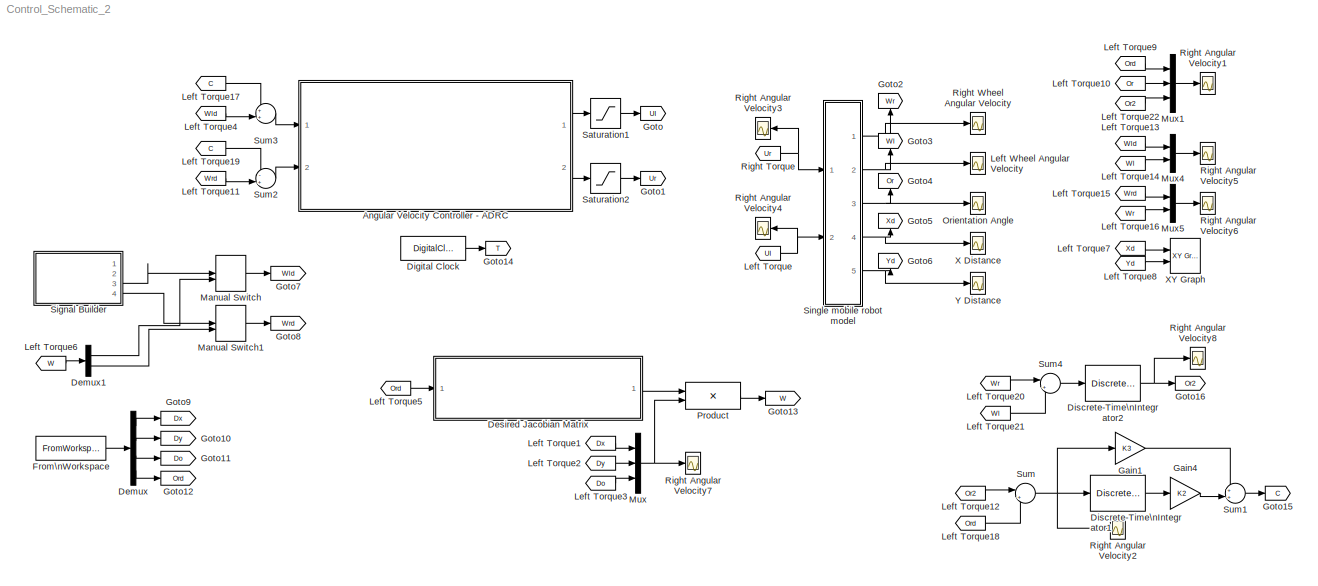
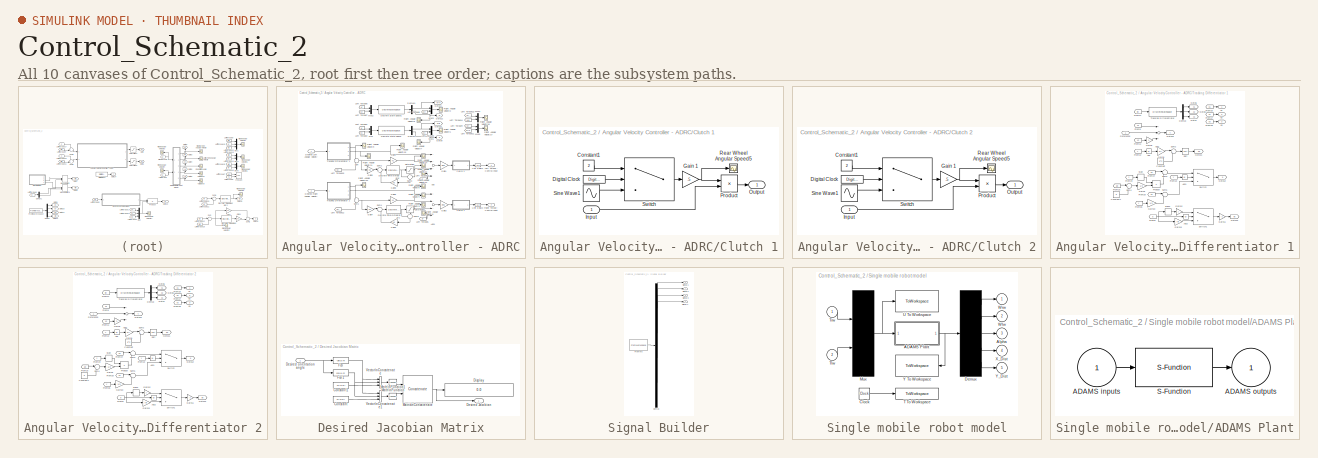
[diagram: thumbnail index - all 10 canvases of the model, root first then tree order]
MODEL Control_Schematic_2
KIND model
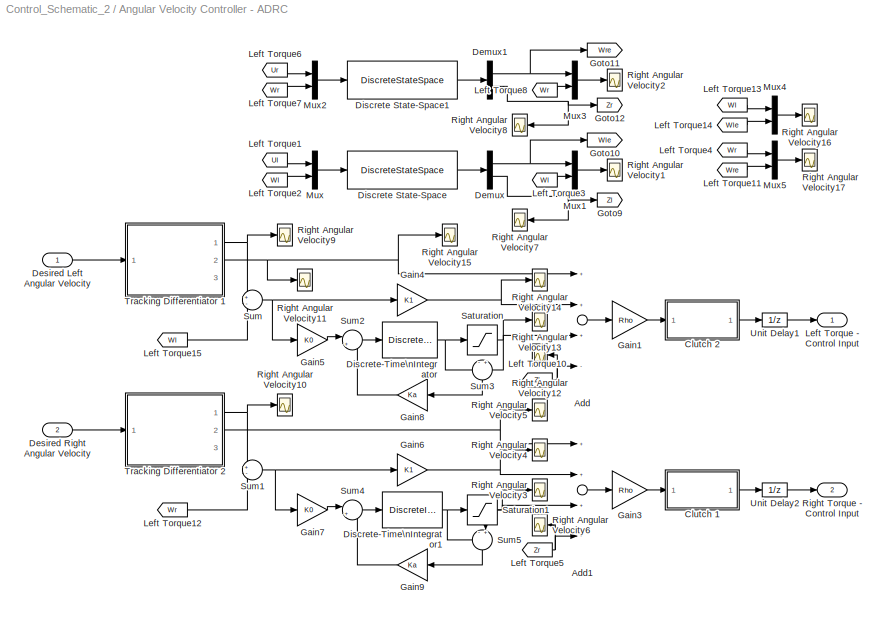
BLOCK [SubSystem] Angular Velocity Controller - ADRC
  Ports = [2, 2]
  RequestExecContextInheritance = off
  SID = 313
BLOCK [Sum] Angular Velocity Controller - ADRC/Add
  InputSameDT = off
  Inputs = +++-
  OutDataTypeStr = Inherit: Inherit via internal rule
  Ports = [4, 1]
  SID = 168
  SaturateOnIntegerOverflow = off
BLOCK [Sum] Angular Velocity Controller - ADRC/Add1
  InputSameDT = off
  Inputs = +++-
  OutDataTypeStr = Inherit: Inherit via internal rule
  Ports = [4, 1]
  SID = 176
  SaturateOnIntegerOverflow = off
BLOCK [SubSystem] Angular Velocity Controller - ADRC/Clutch 1
  Ports = [1, 1]
  RequestExecContextInheritance = off
  SID = 826
BLOCK [Constant] Angular Velocity Controller - ADRC/Clutch 1/Constant1
  SID = 828
  Value = 2
BLOCK [DigitalClock] Angular Velocity Controller - ADRC/Clutch 1/Digital Clock
  SID = 829
  SampleTime = Ts
BLOCK [Gain] Angular Velocity Controller - ADRC/Clutch 1/Gain 1
  Gain = .5
  OutDataTypeStr = Inherit: Inherit via internal rule
  ParamDataTypeStr = Inherit: Inherit via internal rule
  SID = 830
  SaturateOnIntegerOverflow = off
BLOCK [Inport] Angular Velocity Controller - ADRC/Clutch 1/Input
  IconDisplay = Port number
  SID = 827
BLOCK [Outport] Angular Velocity Controller - ADRC/Clutch 1/Output
  IconDisplay = Port number
  SID = 835
BLOCK [Product] Angular Velocity Controller - ADRC/Clutch 1/Product
  InputSameDT = off
  OutDataTypeStr = Inherit: Inherit via internal rule
  Ports = [2, 1]
  RndMeth = Floor
  SID = 831
  SaturateOnIntegerOverflow = off
BLOCK [Scope] Angular Velocity Controller - ADRC/Clutch 1/Rear Wheel Angular Speed5
  Floating = off
  LimitDataPoints = off
  NumInputPorts = 1
  Ports = [1]
  SID = 832
  SaveName = ScopeData5
  ShowLegends = off
  YMax = 2
  YMin = 0
  ZoomMode = xonly
BLOCK [Sin] Angular Velocity Controller - ADRC/Clutch 1/Sine Wave1
  Bias = 1
  Frequency = (pi/1)
  Phase = -pi/2
  Ports = [0, 1]
  SID = 833
  SampleTime = Ts
BLOCK [Switch] Angular Velocity Controller - ADRC/Clutch 1/Switch
  InputSameDT = off
  SID = 834
  SaturateOnIntegerOverflow = off
  Threshold = 1
BLOCK [SubSystem] Angular Velocity Controller - ADRC/Clutch 2
  Ports = [1, 1]
  RequestExecContextInheritance = off
  SID = 836
BLOCK [Constant] Angular Velocity Controller - ADRC/Clutch 2/Constant1
  SID = 838
  Value = 2
BLOCK [DigitalClock] Angular Velocity Controller - ADRC/Clutch 2/Digital Clock
  SID = 839
  SampleTime = Ts
BLOCK [Gain] Angular Velocity Controller - ADRC/Clutch 2/Gain 1
  Gain = .5
  OutDataTypeStr = Inherit: Inherit via internal rule
  ParamDataTypeStr = Inherit: Inherit via internal rule
  SID = 840
  SaturateOnIntegerOverflow = off
BLOCK [Inport] Angular Velocity Controller - ADRC/Clutch 2/Input
  IconDisplay = Port number
  SID = 837
BLOCK [Outport] Angular Velocity Controller - ADRC/Clutch 2/Output
  IconDisplay = Port number
  SID = 845
BLOCK [Product] Angular Velocity Controller - ADRC/Clutch 2/Product
  InputSameDT = off
  OutDataTypeStr = Inherit: Inherit via internal rule
  Ports = [2, 1]
  RndMeth = Floor
  SID = 841
  SaturateOnIntegerOverflow = off
BLOCK [Scope] Angular Velocity Controller - ADRC/Clutch 2/Rear Wheel Angular Speed5
  Floating = off
  LimitDataPoints = off
  NumInputPorts = 1
  Ports = [1]
  SID = 842
  SaveName = ScopeData5
  ShowLegends = off
  YMax = 2
  YMin = 0
  ZoomMode = xonly
BLOCK [Sin] Angular Velocity Controller - ADRC/Clutch 2/Sine Wave1
  Bias = 1
  Frequency = (pi/1)
  Phase = -pi/2
  Ports = [0, 1]
  SID = 843
  SampleTime = Ts
BLOCK [Switch] Angular Velocity Controller - ADRC/Clutch 2/Switch
  InputSameDT = off
  SID = 844
  SaturateOnIntegerOverflow = off
  Threshold = 1
BLOCK [Demux] Angular Velocity Controller - ADRC/Demux
  DisplayOption = bar
  Outputs = 2
  Ports = [1, 2]
  SID = 38
BLOCK [Demux] Angular Velocity Controller - ADRC/Demux1
  DisplayOption = bar
  Outputs = 2
  Ports = [1, 2]
  SID = 155
BLOCK [Inport] Angular Velocity Controller - ADRC/Desired Left Angular Velocity
  IconDisplay = Port number
  SID = 314
BLOCK [Inport] Angular Velocity Controller - ADRC/Desired Right Angular Velocity
  IconDisplay = Port number
  Port = 2
  SID = 315
BLOCK [DiscreteStateSpace] Angular Velocity Controller - ADRC/Discrete State-Space
  A = Obz.a
  B = Obz.b
  C = Obz.c
  D = Obz.d
  SID = 35
  SampleTime = Ts
BLOCK [DiscreteStateSpace] Angular Velocity Controller - ADRC/Discrete State-Space1
  A = Obz.a
  B = Obz.b
  C = Obz.c
  D = Obz.d
  SID = 156
  SampleTime = Ts
BLOCK [DiscreteIntegrator] Angular Velocity Controller - ADRC/Discrete-Time\nIntegrator
  ICPrevOutput = DiscIntNeverNeededParam
  ICPrevScaledInput = DiscIntNeverNeededParam
  IntegratorMethod = Integration: Trapezoidal
  Ports = [1, 1]
  SID = 174
  SampleTime = Ts
BLOCK [DiscreteIntegrator] Angular Velocity Controller - ADRC/Discrete-Time\nIntegrator1
  ICPrevOutput = DiscIntNeverNeededParam
  ICPrevScaledInput = DiscIntNeverNeededParam
  IntegratorMethod = Integration: Trapezoidal
  Ports = [1, 1]
  SID = 177
  SampleTime = Ts
BLOCK [Gain] Angular Velocity Controller - ADRC/Gain1
  Gain = Rho
  OutDataTypeStr = Inherit: Inherit via internal rule
  ParamDataTypeStr = Inherit: Inherit via internal rule
  SID = 46
  SaturateOnIntegerOverflow = off
BLOCK [Gain] Angular Velocity Controller - ADRC/Gain3
  Gain = Rho
  OutDataTypeStr = Inherit: Inherit via internal rule
  ParamDataTypeStr = Inherit: Inherit via internal rule
  SID = 634
  SaturateOnIntegerOverflow = off
BLOCK [Gain] Angular Velocity Controller - ADRC/Gain4
  Gain = K1
  OutDataTypeStr = Inherit: Inherit via internal rule
  ParamDataTypeStr = Inherit: Inherit via internal rule
  SID = 170
  SaturateOnIntegerOverflow = off
BLOCK [Gain] Angular Velocity Controller - ADRC/Gain5
  Gain = K0
  OutDataTypeStr = Inherit: Inherit via internal rule
  ParamDataTypeStr = Inherit: Inherit via internal rule
  SID = 173
  SaturateOnIntegerOverflow = off
BLOCK [Gain] Angular Velocity Controller - ADRC/Gain6
  Gain = K1
  OutDataTypeStr = Inherit: Inherit via internal rule
  ParamDataTypeStr = Inherit: Inherit via internal rule
  SID = 179
  SaturateOnIntegerOverflow = off
BLOCK [Gain] Angular Velocity Controller - ADRC/Gain7
  Gain = K0
  OutDataTypeStr = Inherit: Inherit via internal rule
  ParamDataTypeStr = Inherit: Inherit via internal rule
  SID = 180
  SaturateOnIntegerOverflow = off
BLOCK [Gain] Angular Velocity Controller - ADRC/Gain8
  Gain = Ka
  OutDataTypeStr = Inherit: Inherit via internal rule
  ParamDataTypeStr = Inherit: Inherit via internal rule
  SID = 324
  SaturateOnIntegerOverflow = off
BLOCK [Gain] Angular Velocity Controller - ADRC/Gain9
  Gain = Ka
  OutDataTypeStr = Inherit: Inherit via internal rule
  ParamDataTypeStr = Inherit: Inherit via internal rule
  SID = 328
  SaturateOnIntegerOverflow = off
BLOCK [Goto] Angular Velocity Controller - ADRC/Goto10
  GotoTag = Wle
  SID = 154
  TagVisibility = global
BLOCK [Goto] Angular Velocity Controller - ADRC/Goto11
  GotoTag = Wre
  SID = 158
  TagVisibility = global
BLOCK [Goto] Angular Velocity Controller - ADRC/Goto12
  GotoTag = Zr
  SID = 159
  TagVisibility = global
BLOCK [Goto] Angular Velocity Controller - ADRC/Goto9
  GotoTag = Zl
  SID = 153
  TagVisibility = global
BLOCK [Outport] Angular Velocity Controller - ADRC/Left Torque - Control Input
  IconDisplay = Port number
  SID = 317
BLOCK [From] Angular Velocity Controller - ADRC/Left Torque1
  GotoTag = Ul
  SID = 39
  TagVisibility = global
BLOCK [From] Angular Velocity Controller - ADRC/Left Torque10
  GotoTag = Zl
  SID = 175
  TagVisibility = global
BLOCK [From] Angular Velocity Controller - ADRC/Left Torque11
  GotoTag = Wre
  SID = 640
  TagVisibility = global
BLOCK [From] Angular Velocity Controller - ADRC/Left Torque12
  GotoTag = Wr
  SID = 184
  TagVisibility = global
BLOCK [From] Angular Velocity Controller - ADRC/Left Torque13
  GotoTag = Wl
  SID = 635
  TagVisibility = global
BLOCK [From] Angular Velocity Controller - ADRC/Left Torque14
  GotoTag = Wle
  SID = 636
  TagVisibility = global
BLOCK [From] Angular Velocity Controller - ADRC/Left Torque15
  GotoTag = Wl
  SID = 750
  TagVisibility = global
BLOCK [From] Angular Velocity Controller - ADRC/Left Torque2
  GotoTag = Wl
  SID = 40
  TagVisibility = global
BLOCK [From] Angular Velocity Controller - ADRC/Left Torque3
  GotoTag = Wl
  SID = 43
  TagVisibility = global
BLOCK [From] Angular Velocity Controller - ADRC/Left Torque4
  GotoTag = Wr
  SID = 639
  TagVisibility = global
BLOCK [From] Angular Velocity Controller - ADRC/Left Torque5
  GotoTag = Zr
  SID = 182
  TagVisibility = global
BLOCK [From] Angular Velocity Controller - ADRC/Left Torque6
  GotoTag = Ur
  SID = 160
  TagVisibility = global
BLOCK [From] Angular Velocity Controller - ADRC/Left Torque7
  GotoTag = Wr
  SID = 161
  TagVisibility = global
BLOCK [From] Angular Velocity Controller - ADRC/Left Torque8
  GotoTag = Wr
  SID = 162
  TagVisibility = global
BLOCK [Mux] Angular Velocity Controller - ADRC/Mux
  DisplayOption = bar
  Inputs = 2
  Ports = [2, 1]
  SID = 36
BLOCK [Mux] Angular Velocity Controller - ADRC/Mux1
  DisplayOption = bar
  Inputs = 2
  Ports = [2, 1]
  SID = 42
BLOCK [Mux] Angular Velocity Controller - ADRC/Mux2
  DisplayOption = bar
  Inputs = 2
  Ports = [2, 1]
  SID = 163
BLOCK [Mux] Angular Velocity Controller - ADRC/Mux3
  DisplayOption = bar
  Inputs = 2
  Ports = [2, 1]
  SID = 164
BLOCK [Mux] Angular Velocity Controller - ADRC/Mux4
  DisplayOption = bar
  Inputs = 2
  Ports = [2, 1]
  SID = 637
BLOCK [Mux] Angular Velocity Controller - ADRC/Mux5
  DisplayOption = bar
  Inputs = 2
  Ports = [2, 1]
  SID = 641
BLOCK [Scope] Angular Velocity Controller - ADRC/Right Angular Velocity1
  Floating = off
  LimitDataPoints = off
  NumInputPorts = 1
  Ports = [1]
  SID = 41
  SaveName = ScopeData5
  ShowLegends = off
  YMax = 0.2
  YMin = -0.2
  ZoomMode = xonly
BLOCK [Scope] Angular Velocity Controller - ADRC/Right Angular Velocity10
  Floating = off
  LimitDataPoints = off
  NumInputPorts = 1
  Ports = [1]
  SID = 291
  SaveName = ScopeData14
  ShowLegends = off
  YMax = 15
  YMin = -15
BLOCK [Scope] Angular Velocity Controller - ADRC/Right Angular Velocity11
  Floating = off
  LimitDataPoints = off
  NumInputPorts = 1
  Ports = [1]
  SID = 292
  SaveName = ScopeData15
  ShowLegends = off
  YMax = 50
  YMin = -50
BLOCK [Scope] Angular Velocity Controller - ADRC/Right Angular Velocity12
  Floating = off
  LimitDataPoints = off
  NumInputPorts = 1
  Ports = [1]
  SID = 333
  SaveName = ScopeData21
  ShowLegends = off
  YMax = 15
  YMin = -15
BLOCK [Scope] Angular Velocity Controller - ADRC/Right Angular Velocity13
  Floating = off
  LimitDataPoints = off
  NumInputPorts = 1
  Ports = [1]
  SID = 334
  SaveName = ScopeData22
  ShowLegends = off
  YMax = 1
  YMin = -1
BLOCK [Scope] Angular Velocity Controller - ADRC/Right Angular Velocity14
  Floating = off
  LimitDataPoints = off
  NumInputPorts = 1
  Ports = [1]
  SID = 335
  SaveName = ScopeData23
  ShowLegends = off
  YMax = 0.1
  YMin = -0.1
BLOCK [Scope] Angular Velocity Controller - ADRC/Right Angular Velocity15
  Floating = off
  LimitDataPoints = off
  NumInputPorts = 1
  Ports = [1]
  SID = 336
  SaveName = ScopeData24
  ShowLegends = off
  YMax = 0.0133333
  YMin = 0.0133333
BLOCK [Scope] Angular Velocity Controller - ADRC/Right Angular Velocity16
  Floating = off
  LimitDataPoints = off
  NumInputPorts = 1
  Ports = [1]
  SID = 638
  SaveName = ScopeData25
  ShowLegends = off
  YMax = 1
  YMin = -1
BLOCK [Scope] Angular Velocity Controller - ADRC/Right Angular Velocity17
  Floating = off
  LimitDataPoints = off
  NumInputPorts = 1
  Ports = [1]
  SID = 642
  SaveName = ScopeData26
  ShowLegends = off
  YMax = 1
  YMin = -1
BLOCK [Scope] Angular Velocity Controller - ADRC/Right Angular Velocity2
  Floating = off
  LimitDataPoints = off
  NumInputPorts = 1
  Ports = [1]
  SID = 165
  SaveName = ScopeData6
  ShowLegends = off
  YMax = 0.2
  YMin = -0.2
BLOCK [Scope] Angular Velocity Controller - ADRC/Right Angular Velocity3
  Floating = off
  LimitDataPoints = off
  NumInputPorts = 1
  Ports = [1]
  SID = 329
  SaveName = ScopeData16
  ShowLegends = off
  YMax = 1
  YMin = -1
BLOCK [Scope] Angular Velocity Controller - ADRC/Right Angular Velocity4
  Floating = off
  LimitDataPoints = off
  NumInputPorts = 1
  Ports = [1]
  SID = 330
  SaveName = ScopeData17
  ShowLegends = off
  YMax = 15
  YMin = -15
BLOCK [Scope] Angular Velocity Controller - ADRC/Right Angular Velocity5
  Floating = off
  LimitDataPoints = off
  NumInputPorts = 1
  Ports = [1]
  SID = 331
  SaveName = ScopeData18
  ShowLegends = off
  YMax = 15
  YMin = -15
BLOCK [Scope] Angular Velocity Controller - ADRC/Right Angular Velocity6
  Floating = off
  LimitDataPoints = off
  NumInputPorts = 1
  Ports = [1]
  SID = 332
  SaveName = ScopeData19
  ShowLegends = off
  YMax = 15
  YMin = -15
BLOCK [Scope] Angular Velocity Controller - ADRC/Right Angular Velocity7
  Floating = off
  LimitDataPoints = off
  NumInputPorts = 1
  Ports = [1]
  SID = 288
  SaveName = ScopeData11
  ShowLegends = off
  YMax = 1
  YMin = -1
BLOCK [Scope] Angular Velocity Controller - ADRC/Right Angular Velocity8
  Floating = off
  LimitDataPoints = off
  NumInputPorts = 1
  Ports = [1]
  SID = 289
  SaveName = ScopeData12
  ShowLegends = off
  TimeRange = 10
  YMax = 0.1
  YMin = -0.1
BLOCK [Scope] Angular Velocity Controller - ADRC/Right Angular Velocity9
  Floating = off
  LimitDataPoints = off
  NumInputPorts = 1
  Ports = [1]
  SID = 290
  SaveName = ScopeData13
  ShowLegends = off
  YMax = 15
  YMin = -15
BLOCK [Outport] Angular Velocity Controller - ADRC/Right Torque - Control Input
  IconDisplay = Port number
  Port = 2
  SID = 319
BLOCK [Saturate] Angular Velocity Controller - ADRC/Saturation
  InputPortMap = u0
  LowerLimit = -5e-3
  Ports = [1, 1]
  SID = 322
  UpperLimit = 5e-3
BLOCK [Saturate] Angular Velocity Controller - ADRC/Saturation1
  InputPortMap = u0
  LowerLimit = -5e-3
  Ports = [1, 1]
  SID = 326
  UpperLimit = 5e-3
BLOCK [Sum] Angular Velocity Controller - ADRC/Sum
  IconShape = round
  InputSameDT = off
  Inputs = +-
  OutDataTypeStr = Inherit: Inherit via internal rule
  Ports = [2, 1]
  SID = 171
  SaturateOnIntegerOverflow = off
BLOCK [Sum] Angular Velocity Controller - ADRC/Sum1
  IconShape = round
  InputSameDT = off
  Inputs = +-
  OutDataTypeStr = Inherit: Inherit via internal rule
  Ports = [2, 1]
  SID = 185
  SaturateOnIntegerOverflow = off
BLOCK [Sum] Angular Velocity Controller - ADRC/Sum2
  IconShape = round
  InputSameDT = off
  Inputs = |++
  OutDataTypeStr = Inherit: Inherit via internal rule
  Ports = [2, 1]
  SID = 321
  SaturateOnIntegerOverflow = off
BLOCK [Sum] Angular Velocity Controller - ADRC/Sum3
  IconShape = round
  InputSameDT = off
  Inputs = -+
  OutDataTypeStr = Inherit: Inherit via internal rule
  Ports = [2, 1]
  SID = 323
  SaturateOnIntegerOverflow = off
BLOCK [Sum] Angular Velocity Controller - ADRC/Sum4
  IconShape = round
  InputSameDT = off
  Inputs = |++
  OutDataTypeStr = Inherit: Inherit via internal rule
  Ports = [2, 1]
  SID = 325
  SaturateOnIntegerOverflow = off
BLOCK [Sum] Angular Velocity Controller - ADRC/Sum5
  IconShape = round
  InputSameDT = off
  Inputs = -+
  OutDataTypeStr = Inherit: Inherit via internal rule
  Ports = [2, 1]
  SID = 327
  SaturateOnIntegerOverflow = off
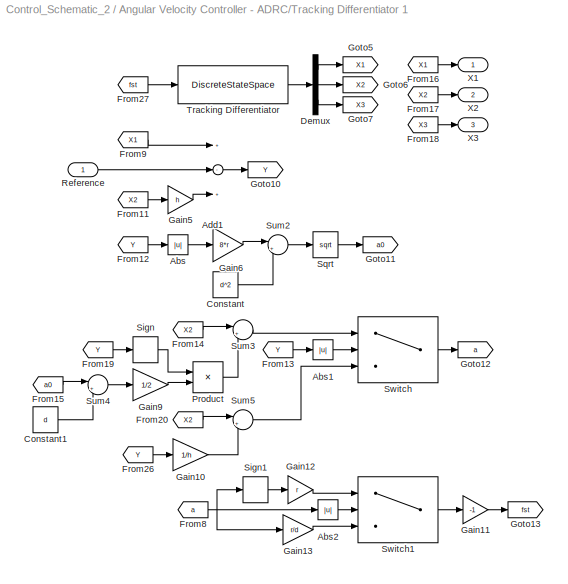
BLOCK [SubSystem] Angular Velocity Controller - ADRC/Tracking Differentiator 1
  Ports = [1, 3]
  RequestExecContextInheritance = off
  SID = 47
BLOCK [Abs] Angular Velocity Controller - ADRC/Tracking Differentiator 1/Abs
  SID = 49
  SaturateOnIntegerOverflow = off
BLOCK [Abs] Angular Velocity Controller - ADRC/Tracking Differentiator 1/Abs1
  SID = 50
  SaturateOnIntegerOverflow = off
BLOCK [Abs] Angular Velocity Controller - ADRC/Tracking Differentiator 1/Abs2
  SID = 51
  SaturateOnIntegerOverflow = off
BLOCK [Sum] Angular Velocity Controller - ADRC/Tracking Differentiator 1/Add1
  InputSameDT = off
  Inputs = +-+
  OutDataTypeStr = Inherit: Inherit via internal rule
  Ports = [3, 1]
  SID = 52
  SaturateOnIntegerOverflow = off
BLOCK [Constant] Angular Velocity Controller - ADRC/Tracking Differentiator 1/Constant
  SID = 53
  Value = d^2
BLOCK [Constant] Angular Velocity Controller - ADRC/Tracking Differentiator 1/Constant1
  SID = 54
  Value = d
BLOCK [Demux] Angular Velocity Controller - ADRC/Tracking Differentiator 1/Demux
  DisplayOption = bar
  Outputs = 3
  Ports = [1, 3]
  SID = 55
BLOCK [From] Angular Velocity Controller - ADRC/Tracking Differentiator 1/From11
  GotoTag = X2
  SID = 56
BLOCK [From] Angular Velocity Controller - ADRC/Tracking Differentiator 1/From12
  GotoTag = Y
  SID = 57
BLOCK [From] Angular Velocity Controller - ADRC/Tracking Differentiator 1/From13
  GotoTag = Y
  SID = 58
BLOCK [From] Angular Velocity Controller - ADRC/Tracking Differentiator 1/From14
  GotoTag = X2
  SID = 59
BLOCK [From] Angular Velocity Controller - ADRC/Tracking Differentiator 1/From15
  GotoTag = a0
  SID = 60
BLOCK [From] Angular Velocity Controller - ADRC/Tracking Differentiator 1/From16
  GotoTag = X1
  SID = 61
BLOCK [From] Angular Velocity Controller - ADRC/Tracking Differentiator 1/From17
  GotoTag = X2
  SID = 62
BLOCK [From] Angular Velocity Controller - ADRC/Tracking Differentiator 1/From18
  GotoTag = X3
  SID = 63
BLOCK [From] Angular Velocity Controller - ADRC/Tracking Differentiator 1/From19
  GotoTag = Y
  SID = 64
BLOCK [From] Angular Velocity Controller - ADRC/Tracking Differentiator 1/From20
  GotoTag = X2
  SID = 65
BLOCK [From] Angular Velocity Controller - ADRC/Tracking Differentiator 1/From26
  GotoTag = Y
  SID = 66
BLOCK [From] Angular Velocity Controller - ADRC/Tracking Differentiator 1/From27
  GotoTag = fst
  SID = 67
BLOCK [From] Angular Velocity Controller - ADRC/Tracking Differentiator 1/From8
  GotoTag = a
  SID = 68
BLOCK [From] Angular Velocity Controller - ADRC/Tracking Differentiator 1/From9
  GotoTag = X1
  SID = 69
BLOCK [Gain] Angular Velocity Controller - ADRC/Tracking Differentiator 1/Gain10
  Gain = 1/h
  OutDataTypeStr = Inherit: Inherit via internal rule
  ParamDataTypeStr = Inherit: Inherit via internal rule
  SID = 70
  SaturateOnIntegerOverflow = off
BLOCK [Gain] Angular Velocity Controller - ADRC/Tracking Differentiator 1/Gain11
  Gain = -1
  OutDataTypeStr = Inherit: Inherit via internal rule
  ParamDataTypeStr = Inherit: Inherit via internal rule
  SID = 71
  SaturateOnIntegerOverflow = off
BLOCK [Gain] Angular Velocity Controller - ADRC/Tracking Differentiator 1/Gain12
  Gain = r
  OutDataTypeStr = Inherit: Inherit via internal rule
  ParamDataTypeStr = Inherit: Inherit via internal rule
  SID = 72
  SaturateOnIntegerOverflow = off
BLOCK [Gain] Angular Velocity Controller - ADRC/Tracking Differentiator 1/Gain13
  Gain = r/d
  OutDataTypeStr = Inherit: Inherit via internal rule
  ParamDataTypeStr = Inherit: Inherit via internal rule
  SID = 73
  SaturateOnIntegerOverflow = off
BLOCK [Gain] Angular Velocity Controller - ADRC/Tracking Differentiator 1/Gain5
  Gain = h
  OutDataTypeStr = Inherit: Inherit via internal rule
  ParamDataTypeStr = Inherit: Inherit via internal rule
  SID = 74
  SaturateOnIntegerOverflow = off
BLOCK [Gain] Angular Velocity Controller - ADRC/Tracking Differentiator 1/Gain6
  Gain = 8*r
  OutDataTypeStr = Inherit: Inherit via internal rule
  ParamDataTypeStr = Inherit: Inherit via internal rule
  SID = 75
  SaturateOnIntegerOverflow = off
BLOCK [Gain] Angular Velocity Controller - ADRC/Tracking Differentiator 1/Gain9
  Gain = 1/2
  OutDataTypeStr = Inherit: Inherit via internal rule
  ParamDataTypeStr = Inherit: Inherit via internal rule
  SID = 76
  SaturateOnIntegerOverflow = off
BLOCK [Goto] Angular Velocity Controller - ADRC/Tracking Differentiator 1/Goto10
  GotoTag = Y
  SID = 77
BLOCK [Goto] Angular Velocity Controller - ADRC/Tracking Differentiator 1/Goto11
  GotoTag = a0
  SID = 78
BLOCK [Goto] Angular Velocity Controller - ADRC/Tracking Differentiator 1/Goto12
  GotoTag = a
  SID = 79
BLOCK [Goto] Angular Velocity Controller - ADRC/Tracking Differentiator 1/Goto13
  GotoTag = fst
  SID = 80
BLOCK [Goto] Angular Velocity Controller - ADRC/Tracking Differentiator 1/Goto5
  GotoTag = X1
  SID = 81
BLOCK [Goto] Angular Velocity Controller - ADRC/Tracking Differentiator 1/Goto6
  GotoTag = X2
  SID = 82
BLOCK [Goto] Angular Velocity Controller - ADRC/Tracking Differentiator 1/Goto7
  GotoTag = X3
  SID = 83
BLOCK [Product] Angular Velocity Controller - ADRC/Tracking Differentiator 1/Product
  InputSameDT = off
  OutDataTypeStr = Inherit: Inherit via internal rule
  Ports = [2, 1]
  RndMeth = Floor
  SID = 84
  SaturateOnIntegerOverflow = off
BLOCK [Inport] Angular Velocity Controller - ADRC/Tracking Differentiator 1/Reference
  IconDisplay = Port number
  SID = 48
BLOCK [Signum] Angular Velocity Controller - ADRC/Tracking Differentiator 1/Sign
  SID = 85
BLOCK [Signum] Angular Velocity Controller - ADRC/Tracking Differentiator 1/Sign1
  SID = 86
BLOCK [Sqrt] Angular Velocity Controller - ADRC/Tracking Differentiator 1/Sqrt
  SID = 87
BLOCK [Sum] Angular Velocity Controller - ADRC/Tracking Differentiator 1/Sum2
  IconShape = round
  InputSameDT = off
  Inputs = |++
  OutDataTypeStr = Inherit: Inherit via internal rule
  Ports = [2, 1]
  SID = 88
  SaturateOnIntegerOverflow = off
BLOCK [Sum] Angular Velocity Controller - ADRC/Tracking Differentiator 1/Sum3
  IconShape = round
  InputSameDT = off
  Inputs = |++
  OutDataTypeStr = Inherit: Inherit via internal rule
  Ports = [2, 1]
  SID = 89
  SaturateOnIntegerOverflow = off
BLOCK [Sum] Angular Velocity Controller - ADRC/Tracking Differentiator 1/Sum4
  IconShape = round
  InputSameDT = off
  Inputs = |+-
  OutDataTypeStr = Inherit: Inherit via internal rule
  Ports = [2, 1]
  SID = 90
  SaturateOnIntegerOverflow = off
BLOCK [Sum] Angular Velocity Controller - ADRC/Tracking Differentiator 1/Sum5
  IconShape = round
  InputSameDT = off
  Inputs = |++
  OutDataTypeStr = Inherit: Inherit via internal rule
  Ports = [2, 1]
  SID = 91
  SaturateOnIntegerOverflow = off
BLOCK [Switch] Angular Velocity Controller - ADRC/Tracking Differentiator 1/Switch
  Criteria = u2 > Threshold
  InputSameDT = off
  SID = 92
  SaturateOnIntegerOverflow = off
  Threshold = d0
BLOCK [Switch] Angular Velocity Controller - ADRC/Tracking Differentiator 1/Switch1
  Criteria = u2 > Threshold
  InputSameDT = off
  SID = 93
  SaturateOnIntegerOverflow = off
  Threshold = d
BLOCK [DiscreteStateSpace] Angular Velocity Controller - ADRC/Tracking Differentiator 1/Tracking Differentiator
  A = TD.a
  B = TD.b
  C = TD.c
  D = TD.d
  SID = 94
  SampleTime = Ts
BLOCK [Outport] Angular Velocity Controller - ADRC/Tracking Differentiator 1/X1
  IconDisplay = Port number
  SID = 95
BLOCK [Outport] Angular Velocity Controller - ADRC/Tracking Differentiator 1/X2
  IconDisplay = Port number
  Port = 2
  SID = 96
BLOCK [Outport] Angular Velocity Controller - ADRC/Tracking Differentiator 1/X3
  IconDisplay = Port number
  Port = 3
  SID = 97
BLOCK [SubSystem] Angular Velocity Controller - ADRC/Tracking Differentiator 2
  Ports = [1, 3]
  RequestExecContextInheritance = off
  SID = 186
BLOCK [Abs] Angular Velocity Controller - ADRC/Tracking Differentiator 2/Abs
  SID = 188
  SaturateOnIntegerOverflow = off
BLOCK [Abs] Angular Velocity Controller - ADRC/Tracking Differentiator 2/Abs1
  SID = 189
  SaturateOnIntegerOverflow = off
BLOCK [Abs] Angular Velocity Controller - ADRC/Tracking Differentiator 2/Abs2
  SID = 190
  SaturateOnIntegerOverflow = off
BLOCK [Sum] Angular Velocity Controller - ADRC/Tracking Differentiator 2/Add1
  InputSameDT = off
  Inputs = +-+
  OutDataTypeStr = Inherit: Inherit via internal rule
  Ports = [3, 1]
  SID = 191
  SaturateOnIntegerOverflow = off
BLOCK [Constant] Angular Velocity Controller - ADRC/Tracking Differentiator 2/Constant
  SID = 192
  Value = d^2
BLOCK [Constant] Angular Velocity Controller - ADRC/Tracking Differentiator 2/Constant1
  SID = 193
  Value = d
BLOCK [Demux] Angular Velocity Controller - ADRC/Tracking Differentiator 2/Demux
  DisplayOption = bar
  Outputs = 3
  Ports = [1, 3]
  SID = 194
BLOCK [From] Angular Velocity Controller - ADRC/Tracking Differentiator 2/From11
  GotoTag = X2
  SID = 195
BLOCK [From] Angular Velocity Controller - ADRC/Tracking Differentiator 2/From12
  GotoTag = Y
  SID = 196
BLOCK [From] Angular Velocity Controller - ADRC/Tracking Differentiator 2/From13
  GotoTag = Y
  SID = 197
BLOCK [From] Angular Velocity Controller - ADRC/Tracking Differentiator 2/From14
  GotoTag = X2
  SID = 198
BLOCK [From] Angular Velocity Controller - ADRC/Tracking Differentiator 2/From15
  GotoTag = a0
  SID = 199
BLOCK [From] Angular Velocity Controller - ADRC/Tracking Differentiator 2/From16
  GotoTag = X1
  SID = 200
BLOCK [From] Angular Velocity Controller - ADRC/Tracking Differentiator 2/From17
  GotoTag = X2
  SID = 201
BLOCK [From] Angular Velocity Controller - ADRC/Tracking Differentiator 2/From18
  GotoTag = X3
  SID = 202
BLOCK [From] Angular Velocity Controller - ADRC/Tracking Differentiator 2/From19
  GotoTag = Y
  SID = 203
BLOCK [From] Angular Velocity Controller - ADRC/Tracking Differentiator 2/From20
  GotoTag = X2
  SID = 204
BLOCK [From] Angular Velocity Controller - ADRC/Tracking Differentiator 2/From26
  GotoTag = Y
  SID = 205
BLOCK [From] Angular Velocity Controller - ADRC/Tracking Differentiator 2/From27
  GotoTag = fst
  SID = 206
BLOCK [From] Angular Velocity Controller - ADRC/Tracking Differentiator 2/From8
  GotoTag = a
  SID = 207
BLOCK [From] Angular Velocity Controller - ADRC/Tracking Differentiator 2/From9
  GotoTag = X1
  SID = 208
BLOCK [Gain] Angular Velocity Controller - ADRC/Tracking Differentiator 2/Gain10
  Gain = 1/h
  OutDataTypeStr = Inherit: Inherit via internal rule
  ParamDataTypeStr = Inherit: Inherit via internal rule
  SID = 209
  SaturateOnIntegerOverflow = off
BLOCK [Gain] Angular Velocity Controller - ADRC/Tracking Differentiator 2/Gain11
  Gain = -1
  OutDataTypeStr = Inherit: Inherit via internal rule
  ParamDataTypeStr = Inherit: Inherit via internal rule
  SID = 210
  SaturateOnIntegerOverflow = off
BLOCK [Gain] Angular Velocity Controller - ADRC/Tracking Differentiator 2/Gain12
  Gain = r
  OutDataTypeStr = Inherit: Inherit via internal rule
  ParamDataTypeStr = Inherit: Inherit via internal rule
  SID = 211
  SaturateOnIntegerOverflow = off
BLOCK [Gain] Angular Velocity Controller - ADRC/Tracking Differentiator 2/Gain13
  Gain = r/d
  OutDataTypeStr = Inherit: Inherit via internal rule
  ParamDataTypeStr = Inherit: Inherit via internal rule
  SID = 212
  SaturateOnIntegerOverflow = off
BLOCK [Gain] Angular Velocity Controller - ADRC/Tracking Differentiator 2/Gain5
  Gain = h
  OutDataTypeStr = Inherit: Inherit via internal rule
  ParamDataTypeStr = Inherit: Inherit via internal rule
  SID = 213
  SaturateOnIntegerOverflow = off
BLOCK [Gain] Angular Velocity Controller - ADRC/Tracking Differentiator 2/Gain6
  Gain = 8*r
  OutDataTypeStr = Inherit: Inherit via internal rule
  ParamDataTypeStr = Inherit: Inherit via internal rule
  SID = 214
  SaturateOnIntegerOverflow = off
BLOCK [Gain] Angular Velocity Controller - ADRC/Tracking Differentiator 2/Gain9
  Gain = 1/2
  OutDataTypeStr = Inherit: Inherit via internal rule
  ParamDataTypeStr = Inherit: Inherit via internal rule
  SID = 215
  SaturateOnIntegerOverflow = off
BLOCK [Goto] Angular Velocity Controller - ADRC/Tracking Differentiator 2/Goto10
  GotoTag = Y
  SID = 216
BLOCK [Goto] Angular Velocity Controller - ADRC/Tracking Differentiator 2/Goto11
  GotoTag = a0
  SID = 217
BLOCK [Goto] Angular Velocity Controller - ADRC/Tracking Differentiator 2/Goto12
  GotoTag = a
  SID = 218
BLOCK [Goto] Angular Velocity Controller - ADRC/Tracking Differentiator 2/Goto13
  GotoTag = fst
  SID = 219
BLOCK [Goto] Angular Velocity Controller - ADRC/Tracking Differentiator 2/Goto5
  GotoTag = X1
  SID = 220
BLOCK [Goto] Angular Velocity Controller - ADRC/Tracking Differentiator 2/Goto6
  GotoTag = X2
  SID = 221
BLOCK [Goto] Angular Velocity Controller - ADRC/Tracking Differentiator 2/Goto7
  GotoTag = X3
  SID = 222
BLOCK [Product] Angular Velocity Controller - ADRC/Tracking Differentiator 2/Product
  InputSameDT = off
  OutDataTypeStr = Inherit: Inherit via internal rule
  Ports = [2, 1]
  RndMeth = Floor
  SID = 223
  SaturateOnIntegerOverflow = off
BLOCK [Inport] Angular Velocity Controller - ADRC/Tracking Differentiator 2/Reference
  IconDisplay = Port number
  SID = 187
BLOCK [Signum] Angular Velocity Controller - ADRC/Tracking Differentiator 2/Sign
  SID = 224
BLOCK [Signum] Angular Velocity Controller - ADRC/Tracking Differentiator 2/Sign1
  SID = 225
BLOCK [Sqrt] Angular Velocity Controller - ADRC/Tracking Differentiator 2/Sqrt
  SID = 226
BLOCK [Sum] Angular Velocity Controller - ADRC/Tracking Differentiator 2/Sum2
  IconShape = round
  InputSameDT = off
  Inputs = |++
  OutDataTypeStr = Inherit: Inherit via internal rule
  Ports = [2, 1]
  SID = 227
  SaturateOnIntegerOverflow = off
BLOCK [Sum] Angular Velocity Controller - ADRC/Tracking Differentiator 2/Sum3
  IconShape = round
  InputSameDT = off
  Inputs = |++
  OutDataTypeStr = Inherit: Inherit via internal rule
  Ports = [2, 1]
  SID = 228
  SaturateOnIntegerOverflow = off
BLOCK [Sum] Angular Velocity Controller - ADRC/Tracking Differentiator 2/Sum4
  IconShape = round
  InputSameDT = off
  Inputs = |+-
  OutDataTypeStr = Inherit: Inherit via internal rule
  Ports = [2, 1]
  SID = 229
  SaturateOnIntegerOverflow = off
BLOCK [Sum] Angular Velocity Controller - ADRC/Tracking Differentiator 2/Sum5
  IconShape = round
  InputSameDT = off
  Inputs = |++
  OutDataTypeStr = Inherit: Inherit via internal rule
  Ports = [2, 1]
  SID = 230
  SaturateOnIntegerOverflow = off
BLOCK [Switch] Angular Velocity Controller - ADRC/Tracking Differentiator 2/Switch
  Criteria = u2 > Threshold
  InputSameDT = off
  SID = 231
  SaturateOnIntegerOverflow = off
  Threshold = d0
BLOCK [Switch] Angular Velocity Controller - ADRC/Tracking Differentiator 2/Switch1
  Criteria = u2 > Threshold
  InputSameDT = off
  SID = 232
  SaturateOnIntegerOverflow = off
  Threshold = d
BLOCK [DiscreteStateSpace] Angular Velocity Controller - ADRC/Tracking Differentiator 2/Tracking Differentiator
  A = TD.a
  B = TD.b
  C = TD.c
  D = TD.d
  SID = 233
  SampleTime = Ts
BLOCK [Outport] Angular Velocity Controller - ADRC/Tracking Differentiator 2/X1
  IconDisplay = Port number
  SID = 234
BLOCK [Outport] Angular Velocity Controller - ADRC/Tracking Differentiator 2/X2
  IconDisplay = Port number
  Port = 2
  SID = 235
BLOCK [Outport] Angular Velocity Controller - ADRC/Tracking Differentiator 2/X3
  IconDisplay = Port number
  Port = 3
  SID = 236
BLOCK [UnitDelay] Angular Velocity Controller - ADRC/Unit Delay1
  InputProcessing = Elements as channels (sample based)
  SID = 747
  SampleTime = -1
BLOCK [UnitDelay] Angular Velocity Controller - ADRC/Unit Delay2
  InputProcessing = Elements as channels (sample based)
  SID = 748
  SampleTime = -1
BLOCK [Demux] Demux
  DisplayOption = bar
  Ports = [1, 4]
  SID = 358
BLOCK [Demux] Demux1
  DisplayOption = bar
  Outputs = 2
  Ports = [1, 2]
  SID = 387
BLOCK [SubSystem] Desired Jacobian Matrix
  Ports = [1, 1]
  RequestExecContextInheritance = off
  SID = 380
BLOCK [Constant] Desired Jacobian Matrix/Constant
  SID = 371
  Value = b/(2*R)
BLOCK [Constant] Desired Jacobian Matrix/Constant1
  SID = 372
  Value = -b/(2*R)
BLOCK [Outport] Desired Jacobian Matrix/Desired Jacobian
  IconDisplay = Port number
  SID = 382
BLOCK [Inport] Desired Jacobian Matrix/Desired orientation angle
  IconDisplay = Port number
  SID = 381
BLOCK [Display] Desired Jacobian Matrix/Display
  Decimation = 1
  Ports = [1]
  SID = 376
BLOCK [Fcn] Desired Jacobian Matrix/Fcn
  Expr = -sin(u)/R
  SID = 369
BLOCK [Fcn] Desired Jacobian Matrix/Fcn1
  Expr = cos(u)/R
  SID = 370
BLOCK [Math] Desired Jacobian Matrix/Math\nFunction
  Operator = transpose
  Ports = [1, 1]
  SID = 377
BLOCK [Math] Desired Jacobian Matrix/Math\nFunction1
  Operator = transpose
  Ports = [1, 1]
  SID = 378
BLOCK [Concatenate] Desired Jacobian Matrix/Matrix\nConcatenate
  Mode = Multidimensional array
  Ports = [2, 1]
  SID = 373
BLOCK [Concatenate] Desired Jacobian Matrix/Vector\nConcatenate
  NumInputs = 3
  Ports = [3, 1]
  SID = 374
BLOCK [Concatenate] Desired Jacobian Matrix/Vector\nConcatenate1
  NumInputs = 3
  Ports = [3, 1]
  SID = 375
BLOCK [DigitalClock] Digital Clock
  SID = 755
  SampleTime = Ts
BLOCK [DiscreteIntegrator] Discrete-Time\nIntegrator1
  ICPrevOutput = DiscIntNeverNeededParam
  ICPrevScaledInput = DiscIntNeverNeededParam
  IntegratorMethod = Integration: Trapezoidal
  Ports = [1, 1]
  SID = 778
  SampleTime = Ts
  gainval = 1
BLOCK [DiscreteIntegrator] Discrete-Time\nIntegrator2
  ICPrevOutput = DiscIntNeverNeededParam
  ICPrevScaledInput = DiscIntNeverNeededParam
  IntegratorMethod = Integration: Trapezoidal
  Ports = [1, 1]
  SID = 794
  SampleTime = Ts
  gainval = R/b
BLOCK [FromWorkspace] From\nWorkspace
  SID = 357
  SampleTime = Ts
  VariableName = desired_path
  ZeroCross = on
BLOCK [Gain] Gain1
  Gain = K3
  OutDataTypeStr = Inherit: Inherit via internal rule
  ParamDataTypeStr = Inherit: Inherit via internal rule
  SID = 782
  SaturateOnIntegerOverflow = off
BLOCK [Gain] Gain4
  Gain = K2
  OutDataTypeStr = Inherit: Inherit via internal rule
  ParamDataTypeStr = Inherit: Inherit via internal rule
  SID = 781
  SaturateOnIntegerOverflow = off
BLOCK [Goto] Goto
  GotoTag = Ul
  SID = 28
  TagVisibility = global
BLOCK [Goto] Goto1
  GotoTag = Ur
  SID = 181
  TagVisibility = global
BLOCK [Goto] Goto10
  GotoTag = Dy
  SID = 360
  TagVisibility = global
BLOCK [Goto] Goto11
  GotoTag = Do
  SID = 361
  TagVisibility = global
BLOCK [Goto] Goto12
  GotoTag = Ord
  SID = 362
  TagVisibility = global
BLOCK [Goto] Goto13
  GotoTag = W
  SID = 385
  TagVisibility = global
BLOCK [Goto] Goto14
  GotoTag = T
  SID = 756
  TagVisibility = global
BLOCK [Goto] Goto15
  GotoTag = C
  SID = 784
  TagVisibility = global
BLOCK [Goto] Goto16
  GotoTag = Or2
  SID = 795
  TagVisibility = global
BLOCK [Goto] Goto2
  GotoTag = Wr
  SID = 30
  TagVisibility = global
BLOCK [Goto] Goto3
  GotoTag = Wl
  SID = 31
  TagVisibility = global
BLOCK [Goto] Goto4
  GotoTag = Or
  SID = 32
  TagVisibility = global
BLOCK [Goto] Goto5
  GotoTag = Xd
  SID = 33
  TagVisibility = global
BLOCK [Goto] Goto6
  GotoTag = Yd
  SID = 34
  TagVisibility = global
BLOCK [Goto] Goto7
  GotoTag = Wld
  SID = 98
  TagVisibility = global
BLOCK [Goto] Goto8
  GotoTag = Wrd
  SID = 100
  TagVisibility = global
BLOCK [Goto] Goto9
  GotoTag = Dx
  SID = 359
  TagVisibility = global
BLOCK [From] Left Torque
  GotoTag = Ul
  SID = 25
  TagVisibility = global
BLOCK [From] Left Torque1
  GotoTag = Dx
  SID = 363
  TagVisibility = global
BLOCK [From] Left Torque10
  GotoTag = Or
  SID = 762
  TagVisibility = global
BLOCK [From] Left Torque11
  GotoTag = Wrd
  SID = 183
  TagVisibility = global
BLOCK [From] Left Torque12
  GotoTag = Or2
  SID = 767
  TagVisibility = global
BLOCK [From] Left Torque13
  GotoTag = Wld
  SID = 272
  TagVisibility = global
BLOCK [From] Left Torque14
  GotoTag = Wl
  SID = 273
  TagVisibility = global
BLOCK [From] Left Torque15
  GotoTag = Wrd
  SID = 275
  TagVisibility = global
BLOCK [From] Left Torque16
  GotoTag = Wr
  SID = 276
  TagVisibility = global
BLOCK [From] Left Torque17
  GotoTag = C
  SID = 787
  TagVisibility = global
BLOCK [From] Left Torque18
  GotoTag = Ord
  SID = 774
  TagVisibility = global
BLOCK [From] Left Torque19
  GotoTag = C
  SID = 788
  TagVisibility = global
BLOCK [From] Left Torque2
  GotoTag = Dy
  SID = 364
  TagVisibility = global
BLOCK [From] Left Torque20
  GotoTag = Wr
  SID = 791
  TagVisibility = global
BLOCK [From] Left Torque21
  GotoTag = Wl
  SID = 792
  TagVisibility = global
BLOCK [From] Left Torque22
  GotoTag = Or2
  SID = 797
  TagVisibility = global
BLOCK [From] Left Torque3
  GotoTag = Do
  SID = 365
  TagVisibility = global
BLOCK [From] Left Torque4
  GotoTag = Wld
  SID = 99
  TagVisibility = global
BLOCK [From] Left Torque5
  GotoTag = Ord
  SID = 366
  TagVisibility = global
BLOCK [From] Left Torque6
  GotoTag = W
  SID = 386
  TagVisibility = global
BLOCK [From] Left Torque7
  GotoTag = Xd
  SID = 461
  TagVisibility = global
BLOCK [From] Left Torque8
  GotoTag = Yd
  SID = 462
  TagVisibility = global
BLOCK [From] Left Torque9
  GotoTag = Ord
  SID = 761
  TagVisibility = global
BLOCK [Scope] Left Wheel Angular Velocity
  Floating = off
  LimitDataPoints = off
  NumInputPorts = 1
  Ports = [1]
  SID = 2
  SaveName = ScopeData2
  ShowLegends = off
BLOCK [ManualSwitch] Manual Switch
  CurrentSetting = 0
  SID = 355
BLOCK [ManualSwitch] Manual Switch1
  CurrentSetting = 0
  SID = 356
BLOCK [Mux] Mux
  DisplayOption = bar
  Inputs = 3
  Ports = [3, 1]
  SID = 367
BLOCK [Mux] Mux1
  DisplayOption = bar
  Inputs = 3
  Ports = [3, 1]
  SID = 763
BLOCK [Mux] Mux4
  DisplayOption = bar
  Inputs = 2
  Ports = [2, 1]
  SID = 271
BLOCK [Mux] Mux5
  DisplayOption = bar
  Inputs = 2
  Ports = [2, 1]
  SID = 277
BLOCK [Scope] Orientation Angle
  Floating = off
  LimitDataPoints = off
  NumInputPorts = 1
  Ports = [1]
  SID = 1
  SaveName = ScopeData1
  ShowLegends = off
  YMax = 2
  YMin = -10
BLOCK [Product] Product
  InputSameDT = off
  Multiplication = Matrix(*)
  OutDataTypeStr = Inherit: Inherit via internal rule
  Ports = [2, 1]
  RndMeth = Floor
  SID = 383
  SaturateOnIntegerOverflow = off
BLOCK [Scope] Right Angular Velocity1
  Floating = off
  LimitDataPoints = off
  NumInputPorts = 1
  Ports = [1]
  SID = 764
  SaveName = ScopeData27
  ShowLegends = off
  YMax = 2
  YMin = -2
BLOCK [Scope] Right Angular Velocity2
  Floating = off
  LimitDataPoints = off
  NumInputPorts = 1
  Ports = [1]
  SID = 789
  SaveName = ScopeData28
  ShowLegends = off
  YMax = 1
  YMin = -1
BLOCK [Scope] Right Angular Velocity3
  Floating = off
  LimitDataPoints = off
  NumInputPorts = 1
  Ports = [1]
  SID = 269
  SaveName = ScopeData7
  ShowLegends = off
  YMax = 50
  YMin = -15
  ZoomMode = xonly
BLOCK [Scope] Right Angular Velocity4
  Floating = off
  LimitDataPoints = off
  NumInputPorts = 1
  Ports = [1]
  SID = 270
  SaveName = ScopeData8
  ShowLegends = off
  YMax = 50
  YMin = -15
BLOCK [Scope] Right Angular Velocity5
  Floating = off
  LimitDataPoints = off
  NumInputPorts = 1
  Ports = [1]
  SID = 274
  SaveName = ScopeData9
  ShowLegends = off
  YMax = 1
  YMin = -1
BLOCK [Scope] Right Angular Velocity6
  Floating = off
  LimitDataPoints = off
  NumInputPorts = 1
  Ports = [1]
  SID = 278
  SaveName = ScopeData10
  ShowLegends = off
  YMax = 1.5
  YMin = -1
BLOCK [Scope] Right Angular Velocity7
  Floating = off
  LimitDataPoints = off
  NumInputPorts = 1
  Ports = [1]
  SID = 790
  SaveName = ScopeData29
  ShowLegends = off
  YMax = 1
  YMin = -1
  ZoomMode = xonly
BLOCK [Scope] Right Angular Velocity8
  Floating = off
  LimitDataPoints = off
  NumInputPorts = 1
  Ports = [1]
  SID = 796
  SaveName = ScopeData30
  ShowLegends = off
  YMax = 1
  YMin = -1
  ZoomMode = xonly
BLOCK [From] Right Torque
  GotoTag = Ur
  SID = 24
  TagVisibility = global
BLOCK [Scope] Right Wheel Angular Velocity
  Floating = off
  LimitDataPoints = off
  NumInputPorts = 1
  Ports = [1]
  SID = 3
  SaveName = ScopeData3
  ShowLegends = off
  YMax = 0.4
  YMin = -0.4
  ZoomMode = xonly
BLOCK [Saturate] Saturation1
  InputPortMap = u0
  LowerLimit = -200
  Ports = [1, 1]
  SID = 757
  UpperLimit = 200
BLOCK [Saturate] Saturation2
  InputPortMap = u0
  LowerLimit = -200
  Ports = [1, 1]
  SID = 758
  UpperLimit = 200
BLOCK [SubSystem] Signal Builder
  ClipboardFcn = sigbuilder_block('clipboard');
  CloseFcn = sigbuilder_block('close');
  ContinueFcn = sigbuilder_block('continue');
  CopyFcn = sigbuilder_block('copy');
  DeleteFcn = sigbuilder_block('delete');
  LoadFcn = sigbuilder_block('load');
  MaskHideContents = on
  ModelCloseFcn = sigbuilder_block('modelClose');
  NameChangeFcn = sigbuilder_block('namechange');
  OpenFcn = sigbuilder_block('open',[437.25 118.5 550.5 394.5 ]);
  PauseFcn = sigbuilder_block('pause');
  Ports = [0, 4]
  PreSaveFcn = sigbuilder_block('preSave');
  RequestExecContextInheritance = off
  SID = 320
  StartFcn = sigbuilder_block('start');
  StopFcn = sigbuilder_block('stop');
  Tag = STV Subsys
BLOCK [Demux] Signal Builder/Demux
  Ports = [1, 4]
  SID = 320:1
  Tag = STV Demux
BLOCK [FromWorkspace] Signal Builder/FromWs
  SID = 320:2
  SampleTime = 0
  SigBuilderData = DataTag0
  Tag = STV FromWs
  VariableName = tuvar
  VnvData = DataTag1
  ZeroCross = on
BLOCK [Outport] Signal Builder/Signal 1
  IconDisplay = Port number
  SID = 320:4
  Tag = STV Outport
BLOCK [Outport] Signal Builder/Signal 2
  IconDisplay = Port number
  Port = 2
  SID = 320:5
  Tag = STV Outport
BLOCK [Outport] Signal Builder/Signal 3
  IconDisplay = Port number
  Port = 3
  SID = 320:6
  Tag = STV Outport
BLOCK [Outport] Signal Builder/Signal 4
  IconDisplay = Port number
  Port = 4
  SID = 320:7
  Tag = STV Outport
BLOCK [SubSystem] Single mobile robot model
  Ports = [2, 5]
  RequestExecContextInheritance = off
  SID = 798
  ShowPortLabels = none
BLOCK [SubSystem] Single mobile robot model/ADAMS Plant
  InitFcn = clear mex
  LoadFcn = %check based on dialog box setting for when setting by popup menu                                             \nif exist('ADAMS_solver_type')                                                                                 \n  if strcmp(ADAMS_solver_type,'C++')                                                                          \n    set_param(gcb,'exetyp','C++');                              ...<+3523ch>
  OpenFcn = open_system(gcb,'mask')                                                                                                                          \nif not(exist('set_some_params_states'))                                                                                                          \n                                                                                                          ...<+634ch>
  Ports = [1, 1]
  RequestExecContextInheritance = off
  SID = 801
BLOCK [Inport] Single mobile robot model/ADAMS Plant/ADAMS inputs
  IconDisplay = Port number
  SID = 802
BLOCK [Outport] Single mobile robot model/ADAMS Plant/ADAMS outputs
  IconDisplay = Port number
  InitialOutput = 0
  SID = 804
BLOCK [S-Function] Single mobile robot model/ADAMS Plant/S-Function
  EnableBusSupport = off
  FunctionName = adams_plant
  Parameters = exevie,exesol,stat,outfil,nampre,o_rate,nam_in,namout,dft,modsim,modani,dt_out,inicmd,exetyp,comtyp,ada_host, workdir,pin_interp_order,pout_extrap_order,pin_extrap_order,pout_interp_order,simulink_lead_cosim
  Ports = [1, 1]
  SID = 803
  StopFcn = clear mex
BLOCK [Outport] Single mobile robot model/Alpha
  IconDisplay = Port number
  Port = 3
  SID = 813
BLOCK [Clock] Single mobile robot model/Clock
  SID = 805
BLOCK [Demux] Single mobile robot model/Demux
  Outputs = 5
  Ports = [1, 5]
  SID = 806
BLOCK [Mux] Single mobile robot model/Mux
  Inputs = 2
  Ports = [2, 1]
  SID = 807
BLOCK [ToWorkspace] Single mobile robot model/T To Workspace
  MaxDataPoints = 100000
  Ports = [1]
  SID = 808
  VariableName = ADAMS_tout
BLOCK [Inport] Single mobile robot model/Tlw
  IconDisplay = Port number
  Port = 2
  SID = 800
BLOCK [Inport] Single mobile robot model/Trw
  IconDisplay = Port number
  SID = 799
BLOCK [ToWorkspace] Single mobile robot model/U To Workspace
  MaxDataPoints = 100000
  Ports = [1]
  SID = 809
  VariableName = ADAMS_uout
BLOCK [Outport] Single mobile robot model/Wlw
  IconDisplay = Port number
  Port = 2
  SID = 812
BLOCK [Outport] Single mobile robot model/Wrw
  IconDisplay = Port number
  SID = 811
BLOCK [Outport] Single mobile robot model/X_Dist
  IconDisplay = Port number
  Port = 4
  SID = 814
BLOCK [ToWorkspace] Single mobile robot model/Y To Workspace
  MaxDataPoints = 100000
  Ports = [1]
  SID = 810
  VariableName = ADAMS_yout
BLOCK [Outport] Single mobile robot model/Y_Dist
  IconDisplay = Port number
  Port = 5
  SID = 815
BLOCK [Sum] Sum
  IconShape = round
  InputSameDT = off
  Inputs = |+-
  OutDataTypeStr = Inherit: Inherit via internal rule
  Ports = [2, 1]
  SID = 773
  SaturateOnIntegerOverflow = off
BLOCK [Sum] Sum1
  IconShape = round
  InputSameDT = off
  Inputs = ++|
  OutDataTypeStr = Inherit: Inherit via internal rule
  Ports = [2, 1]
  SID = 783
  SaturateOnIntegerOverflow = off
BLOCK [Sum] Sum2
  IconShape = round
  InputSameDT = off
  Inputs = -+|
  OutDataTypeStr = Inherit: Inherit via internal rule
  Ports = [2, 1]
  SID = 785
  SaturateOnIntegerOverflow = off
BLOCK [Sum] Sum3
  IconShape = round
  InputSameDT = off
  Inputs = ++|
  OutDataTypeStr = Inherit: Inherit via internal rule
  Ports = [2, 1]
  SID = 786
  SaturateOnIntegerOverflow = off
BLOCK [Sum] Sum4
  IconShape = round
  InputSameDT = off
  Inputs = |+-
  OutDataTypeStr = Inherit: Inherit via internal rule
  Ports = [2, 1]
  SID = 793
  SaturateOnIntegerOverflow = off
BLOCK [Scope] X Distance
  Floating = off
  LimitDataPoints = off
  NumInputPorts = 1
  Ports = [1]
  SID = 4
  SaveName = ScopeData4
  ShowLegends = off
  YMax = 2600
  YMin = 0
BLOCK [Reference] XY Graph  REF=simulink/Sinks/XY Graph
  Ports = [2]
  SID = 460
  SourceBlock = simulink/Sinks/XY Graph
  SourceType = XY scope.
  st = Ts
  xmax = 5000
  xmin = 0
  ymax = 5000
  ymin = 0
BLOCK [Scope] Y Distance
  Floating = off
  LimitDataPoints = off
  NumInputPorts = 1
  Ports = [1]
  SID = 5
  ShowLegends = off
  YMax = 1000
  YMin = 0
LINE Angular Velocity Controller - ADRC/Add1:1 -> Angular Velocity Controller - ADRC/Gain3:1
LINE Angular Velocity Controller - ADRC/Add:1 -> Angular Velocity Controller - ADRC/Gain1:1
LINE Angular Velocity Controller - ADRC/Clutch 1/Constant1:1 -> Angular Velocity Controller - ADRC/Clutch 1/Switch:1
LINE Angular Velocity Controller - ADRC/Clutch 1/Digital Clock:1 -> Angular Velocity Controller - ADRC/Clutch 1/Switch:2
NET Angular Velocity Controller - ADRC/Clutch 1/Gain 1:1 -> Angular Velocity Controller - ADRC/Clutch 1/Product:1, Angular Velocity Controller - ADRC/Clutch 1/Rear Wheel Angular Speed5:1
LINE Angular Velocity Controller - ADRC/Clutch 1/Input:1 -> Angular Velocity Controller - ADRC/Clutch 1/Product:2
LINE Angular Velocity Controller - ADRC/Clutch 1/Product:1 -> Angular Velocity Controller - ADRC/Clutch 1/Output:1
LINE Angular Velocity Controller - ADRC/Clutch 1/Sine Wave1:1 -> Angular Velocity Controller - ADRC/Clutch 1/Switch:3
LINE Angular Velocity Controller - ADRC/Clutch 1/Switch:1 -> Angular Velocity Controller - ADRC/Clutch 1/Gain 1:1
LINE Angular Velocity Controller - ADRC/Clutch 1:1 -> Angular Velocity Controller - ADRC/Unit Delay2:1
LINE Angular Velocity Controller - ADRC/Clutch 2/Constant1:1 -> Angular Velocity Controller - ADRC/Clutch 2/Switch:1
LINE Angular Velocity Controller - ADRC/Clutch 2/Digital Clock:1 -> Angular Velocity Controller - ADRC/Clutch 2/Switch:2
NET Angular Velocity Controller - ADRC/Clutch 2/Gain 1:1 -> Angular Velocity Controller - ADRC/Clutch 2/Product:1, Angular Velocity Controller - ADRC/Clutch 2/Rear Wheel Angular Speed5:1
LINE Angular Velocity Controller - ADRC/Clutch 2/Input:1 -> Angular Velocity Controller - ADRC/Clutch 2/Product:2
LINE Angular Velocity Controller - ADRC/Clutch 2/Product:1 -> Angular Velocity Controller - ADRC/Clutch 2/Output:1
LINE Angular Velocity Controller - ADRC/Clutch 2/Sine Wave1:1 -> Angular Velocity Controller - ADRC/Clutch 2/Switch:3
LINE Angular Velocity Controller - ADRC/Clutch 2/Switch:1 -> Angular Velocity Controller - ADRC/Clutch 2/Gain 1:1
LINE Angular Velocity Controller - ADRC/Clutch 2:1 -> Angular Velocity Controller - ADRC/Unit Delay1:1
NET Angular Velocity Controller - ADRC/Demux1:1 -> Angular Velocity Controller - ADRC/Goto11:1, Angular Velocity Controller - ADRC/Mux3:1
NET Angular Velocity Controller - ADRC/Demux1:2 -> Angular Velocity Controller - ADRC/Goto12:1, Angular Velocity Controller - ADRC/Right Angular Velocity8:1
NET Angular Velocity Controller - ADRC/Demux:1 -> Angular Velocity Controller - ADRC/Goto10:1, Angular Velocity Controller - ADRC/Mux1:1
NET Angular Velocity Controller - ADRC/Demux:2 -> Angular Velocity Controller - ADRC/Goto9:1, Angular Velocity Controller - ADRC/Right Angular Velocity7:1
LINE Angular Velocity Controller - ADRC/Desired Left Angular Velocity:1 -> Angular Velocity Controller - ADRC/Tracking Differentiator 1:1
LINE Angular Velocity Controller - ADRC/Desired Right Angular Velocity:1 -> Angular Velocity Controller - ADRC/Tracking Differentiator 2:1
LINE Angular Velocity Controller - ADRC/Discrete State-Space1:1 -> Angular Velocity Controller - ADRC/Demux1:1
LINE Angular Velocity Controller - ADRC/Discrete State-Space:1 -> Angular Velocity Controller - ADRC/Demux:1
NET Angular Velocity Controller - ADRC/Discrete-Time\nIntegrator1:1 -> Angular Velocity Controller - ADRC/Saturation1:1, Angular Velocity Controller - ADRC/Sum5:1
NET Angular Velocity Controller - ADRC/Discrete-Time\nIntegrator:1 -> Angular Velocity Controller - ADRC/Saturation:1, Angular Velocity Controller - ADRC/Sum3:1
LINE Angular Velocity Controller - ADRC/Gain1:1 -> Angular Velocity Controller - ADRC/Clutch 2:1
LINE Angular Velocity Controller - ADRC/Gain3:1 -> Angular Velocity Controller - ADRC/Clutch 1:1
NET Angular Velocity Controller - ADRC/Gain4:1 -> Angular Velocity Controller - ADRC/Add:2, Angular Velocity Controller - ADRC/Right Angular Velocity14:1
LINE Angular Velocity Controller - ADRC/Gain5:1 -> Angular Velocity Controller - ADRC/Sum2:1
NET Angular Velocity Controller - ADRC/Gain6:1 -> Angular Velocity Controller - ADRC/Add1:2, Angular Velocity Controller - ADRC/Right Angular Velocity4:1
LINE Angular Velocity Controller - ADRC/Gain7:1 -> Angular Velocity Controller - ADRC/Sum4:1
LINE Angular Velocity Controller - ADRC/Gain8:1 -> Angular Velocity Controller - ADRC/Sum2:2
LINE Angular Velocity Controller - ADRC/Gain9:1 -> Angular Velocity Controller - ADRC/Sum4:2
NET Angular Velocity Controller - ADRC/Left Torque10:1 -> Angular Velocity Controller - ADRC/Add:4, Angular Velocity Controller - ADRC/Right Angular Velocity12:1
LINE Angular Velocity Controller - ADRC/Left Torque11:1 -> Angular Velocity Controller - ADRC/Mux5:2
LINE Angular Velocity Controller - ADRC/Left Torque12:1 -> Angular Velocity Controller - ADRC/Sum1:2
LINE Angular Velocity Controller - ADRC/Left Torque13:1 -> Angular Velocity Controller - ADRC/Mux4:1
LINE Angular Velocity Controller - ADRC/Left Torque14:1 -> Angular Velocity Controller - ADRC/Mux4:2
LINE Angular Velocity Controller - ADRC/Left Torque15:1 -> Angular Velocity Controller - ADRC/Sum:2
LINE Angular Velocity Controller - ADRC/Left Torque1:1 -> Angular Velocity Controller - ADRC/Mux:1
LINE Angular Velocity Controller - ADRC/Left Torque2:1 -> Angular Velocity Controller - ADRC/Mux:2
LINE Angular Velocity Controller - ADRC/Left Torque3:1 -> Angular Velocity Controller - ADRC/Mux1:2
LINE Angular Velocity Controller - ADRC/Left Torque4:1 -> Angular Velocity Controller - ADRC/Mux5:1
NET Angular Velocity Controller - ADRC/Left Torque5:1 -> Angular Velocity Controller - ADRC/Add1:4, Angular Velocity Controller - ADRC/Right Angular Velocity6:1
LINE Angular Velocity Controller - ADRC/Left Torque6:1 -> Angular Velocity Controller - ADRC/Mux2:1
LINE Angular Velocity Controller - ADRC/Left Torque7:1 -> Angular Velocity Controller - ADRC/Mux2:2
LINE Angular Velocity Controller - ADRC/Left Torque8:1 -> Angular Velocity Controller - ADRC/Mux3:2
LINE Angular Velocity Controller - ADRC/Mux1:1 -> Angular Velocity Controller - ADRC/Right Angular Velocity1:1
LINE Angular Velocity Controller - ADRC/Mux2:1 -> Angular Velocity Controller - ADRC/Discrete State-Space1:1
LINE Angular Velocity Controller - ADRC/Mux3:1 -> Angular Velocity Controller - ADRC/Right Angular Velocity2:1
LINE Angular Velocity Controller - ADRC/Mux4:1 -> Angular Velocity Controller - ADRC/Right Angular Velocity16:1
LINE Angular Velocity Controller - ADRC/Mux5:1 -> Angular Velocity Controller - ADRC/Right Angular Velocity17:1
LINE Angular Velocity Controller - ADRC/Mux:1 -> Angular Velocity Controller - ADRC/Discrete State-Space:1
NET Angular Velocity Controller - ADRC/Saturation1:1 -> Angular Velocity Controller - ADRC/Add1:3, Angular Velocity Controller - ADRC/Right Angular Velocity3:1, Angular Velocity Controller - ADRC/Sum5:2
NET Angular Velocity Controller - ADRC/Saturation:1 -> Angular Velocity Controller - ADRC/Add:3, Angular Velocity Controller - ADRC/Right Angular Velocity13:1, Angular Velocity Controller - ADRC/Sum3:2
NET Angular Velocity Controller - ADRC/Sum1:1 -> Angular Velocity Controller - ADRC/Gain6:1, Angular Velocity Controller - ADRC/Gain7:1
LINE Angular Velocity Controller - ADRC/Sum2:1 -> Angular Velocity Controller - ADRC/Discrete-Time\nIntegrator:1
LINE Angular Velocity Controller - ADRC/Sum3:1 -> Angular Velocity Controller - ADRC/Gain8:1
LINE Angular Velocity Controller - ADRC/Sum4:1 -> Angular Velocity Controller - ADRC/Discrete-Time\nIntegrator1:1
LINE Angular Velocity Controller - ADRC/Sum5:1 -> Angular Velocity Controller - ADRC/Gain9:1
NET Angular Velocity Controller - ADRC/Sum:1 -> Angular Velocity Controller - ADRC/Gain4:1, Angular Velocity Controller - ADRC/Gain5:1
LINE Angular Velocity Controller - ADRC/Tracking Differentiator 1/Abs1:1 -> Angular Velocity Controller - ADRC/Tracking Differentiator 1/Switch:2
LINE Angular Velocity Controller - ADRC/Tracking Differentiator 1/Abs2:1 -> Angular Velocity Controller - ADRC/Tracking Differentiator 1/Switch1:2
LINE Angular Velocity Controller - ADRC/Tracking Differentiator 1/Abs:1 -> Angular Velocity Controller - ADRC/Tracking Differentiator 1/Gain6:1
LINE Angular Velocity Controller - ADRC/Tracking Differentiator 1/Add1:1 -> Angular Velocity Controller - ADRC/Tracking Differentiator 1/Goto10:1
LINE Angular Velocity Controller - ADRC/Tracking Differentiator 1/Constant1:1 -> Angular Velocity Controller - ADRC/Tracking Differentiator 1/Sum4:2
LINE Angular Velocity Controller - ADRC/Tracking Differentiator 1/Constant:1 -> Angular Velocity Controller - ADRC/Tracking Differentiator 1/Sum2:2
LINE Angular Velocity Controller - ADRC/Tracking Differentiator 1/Demux:1 -> Angular Velocity Controller - ADRC/Tracking Differentiator 1/Goto5:1
LINE Angular Velocity Controller - ADRC/Tracking Differentiator 1/Demux:2 -> Angular Velocity Controller - ADRC/Tracking Differentiator 1/Goto6:1
LINE Angular Velocity Controller - ADRC/Tracking Differentiator 1/Demux:3 -> Angular Velocity Controller - ADRC/Tracking Differentiator 1/Goto7:1
LINE Angular Velocity Controller - ADRC/Tracking Differentiator 1/From11:1 -> Angular Velocity Controller - ADRC/Tracking Differentiator 1/Gain5:1
LINE Angular Velocity Controller - ADRC/Tracking Differentiator 1/From12:1 -> Angular Velocity Controller - ADRC/Tracking Differentiator 1/Abs:1
LINE Angular Velocity Controller - ADRC/Tracking Differentiator 1/From13:1 -> Angular Velocity Controller - ADRC/Tracking Differentiator 1/Abs1:1
LINE Angular Velocity Controller - ADRC/Tracking Differentiator 1/From14:1 -> Angular Velocity Controller - ADRC/Tracking Differentiator 1/Sum3:1
LINE Angular Velocity Controller - ADRC/Tracking Differentiator 1/From15:1 -> Angular Velocity Controller - ADRC/Tracking Differentiator 1/Sum4:1
LINE Angular Velocity Controller - ADRC/Tracking Differentiator 1/From16:1 -> Angular Velocity Controller - ADRC/Tracking Differentiator 1/X1:1
LINE Angular Velocity Controller - ADRC/Tracking Differentiator 1/From17:1 -> Angular Velocity Controller - ADRC/Tracking Differentiator 1/X2:1
LINE Angular Velocity Controller - ADRC/Tracking Differentiator 1/From18:1 -> Angular Velocity Controller - ADRC/Tracking Differentiator 1/X3:1
LINE Angular Velocity Controller - ADRC/Tracking Differentiator 1/From19:1 -> Angular Velocity Controller - ADRC/Tracking Differentiator 1/Sign:1
LINE Angular Velocity Controller - ADRC/Tracking Differentiator 1/From20:1 -> Angular Velocity Controller - ADRC/Tracking Differentiator 1/Sum5:1
LINE Angular Velocity Controller - ADRC/Tracking Differentiator 1/From26:1 -> Angular Velocity Controller - ADRC/Tracking Differentiator 1/Gain10:1
LINE Angular Velocity Controller - ADRC/Tracking Differentiator 1/From27:1 -> Angular Velocity Controller - ADRC/Tracking Differentiator 1/Tracking Differentiator:1
NET Angular Velocity Controller - ADRC/Tracking Differentiator 1/From8:1 -> Angular Velocity Controller - ADRC/Tracking Differentiator 1/Abs2:1, Angular Velocity Controller - ADRC/Tracking Differentiator 1/Gain13:1, Angular Velocity Controller - ADRC/Tracking Differentiator 1/Sign1:1
LINE Angular Velocity Controller - ADRC/Tracking Differentiator 1/From9:1 -> Angular Velocity Controller - ADRC/Tracking Differentiator 1/Add1:1
LINE Angular Velocity Controller - ADRC/Tracking Differentiator 1/Gain10:1 -> Angular Velocity Controller - ADRC/Tracking Differentiator 1/Sum5:2
LINE Angular Velocity Controller - ADRC/Tracking Differentiator 1/Gain11:1 -> Angular Velocity Controller - ADRC/Tracking Differentiator 1/Goto13:1
LINE Angular Velocity Controller - ADRC/Tracking Differentiator 1/Gain12:1 -> Angular Velocity Controller - ADRC/Tracking Differentiator 1/Switch1:1
LINE Angular Velocity Controller - ADRC/Tracking Differentiator 1/Gain13:1 -> Angular Velocity Controller - ADRC/Tracking Differentiator 1/Switch1:3
LINE Angular Velocity Controller - ADRC/Tracking Differentiator 1/Gain5:1 -> Angular Velocity Controller - ADRC/Tracking Differentiator 1/Add1:3
LINE Angular Velocity Controller - ADRC/Tracking Differentiator 1/Gain6:1 -> Angular Velocity Controller - ADRC/Tracking Differentiator 1/Sum2:1
LINE Angular Velocity Controller - ADRC/Tracking Differentiator 1/Gain9:1 -> Angular Velocity Controller - ADRC/Tracking Differentiator 1/Product:2
LINE Angular Velocity Controller - ADRC/Tracking Differentiator 1/Product:1 -> Angular Velocity Controller - ADRC/Tracking Differentiator 1/Sum3:2
LINE Angular Velocity Controller - ADRC/Tracking Differentiator 1/Reference:1 -> Angular Velocity Controller - ADRC/Tracking Differentiator 1/Add1:2
LINE Angular Velocity Controller - ADRC/Tracking Differentiator 1/Sign1:1 -> Angular Velocity Controller - ADRC/Tracking Differentiator 1/Gain12:1
LINE Angular Velocity Controller - ADRC/Tracking Differentiator 1/Sign:1 -> Angular Velocity Controller - ADRC/Tracking Differentiator 1/Product:1
LINE Angular Velocity Controller - ADRC/Tracking Differentiator 1/Sqrt:1 -> Angular Velocity Controller - ADRC/Tracking Differentiator 1/Goto11:1
LINE Angular Velocity Controller - ADRC/Tracking Differentiator 1/Sum2:1 -> Angular Velocity Controller - ADRC/Tracking Differentiator 1/Sqrt:1
LINE Angular Velocity Controller - ADRC/Tracking Differentiator 1/Sum3:1 -> Angular Velocity Controller - ADRC/Tracking Differentiator 1/Switch:1
LINE Angular Velocity Controller - ADRC/Tracking Differentiator 1/Sum4:1 -> Angular Velocity Controller - ADRC/Tracking Differentiator 1/Gain9:1
LINE Angular Velocity Controller - ADRC/Tracking Differentiator 1/Sum5:1 -> Angular Velocity Controller - ADRC/Tracking Differentiator 1/Switch:3
LINE Angular Velocity Controller - ADRC/Tracking Differentiator 1/Switch1:1 -> Angular Velocity Controller - ADRC/Tracking Differentiator 1/Gain11:1
LINE Angular Velocity Controller - ADRC/Tracking Differentiator 1/Switch:1 -> Angular Velocity Controller - ADRC/Tracking Differentiator 1/Goto12:1
LINE Angular Velocity Controller - ADRC/Tracking Differentiator 1/Tracking Differentiator:1 -> Angular Velocity Controller - ADRC/Tracking Differentiator 1/Demux:1
NET Angular Velocity Controller - ADRC/Tracking Differentiator 1:1 -> Angular Velocity Controller - ADRC/Right Angular Velocity9:1, Angular Velocity Controller - ADRC/Sum:1
NET Angular Velocity Controller - ADRC/Tracking Differentiator 1:2 -> Angular Velocity Controller - ADRC/Add:1, Angular Velocity Controller - ADRC/Right Angular Velocity11:1, Angular Velocity Controller - ADRC/Right Angular Velocity15:1
LINE Angular Velocity Controller - ADRC/Tracking Differentiator 2/Abs1:1 -> Angular Velocity Controller - ADRC/Tracking Differentiator 2/Switch:2
LINE Angular Velocity Controller - ADRC/Tracking Differentiator 2/Abs2:1 -> Angular Velocity Controller - ADRC/Tracking Differentiator 2/Switch1:2
LINE Angular Velocity Controller - ADRC/Tracking Differentiator 2/Abs:1 -> Angular Velocity Controller - ADRC/Tracking Differentiator 2/Gain6:1
LINE Angular Velocity Controller - ADRC/Tracking Differentiator 2/Add1:1 -> Angular Velocity Controller - ADRC/Tracking Differentiator 2/Goto10:1
LINE Angular Velocity Controller - ADRC/Tracking Differentiator 2/Constant1:1 -> Angular Velocity Controller - ADRC/Tracking Differentiator 2/Sum4:2
LINE Angular Velocity Controller - ADRC/Tracking Differentiator 2/Constant:1 -> Angular Velocity Controller - ADRC/Tracking Differentiator 2/Sum2:2
LINE Angular Velocity Controller - ADRC/Tracking Differentiator 2/Demux:1 -> Angular Velocity Controller - ADRC/Tracking Differentiator 2/Goto5:1
LINE Angular Velocity Controller - ADRC/Tracking Differentiator 2/Demux:2 -> Angular Velocity Controller - ADRC/Tracking Differentiator 2/Goto6:1
LINE Angular Velocity Controller - ADRC/Tracking Differentiator 2/Demux:3 -> Angular Velocity Controller - ADRC/Tracking Differentiator 2/Goto7:1
LINE Angular Velocity Controller - ADRC/Tracking Differentiator 2/From11:1 -> Angular Velocity Controller - ADRC/Tracking Differentiator 2/Gain5:1
LINE Angular Velocity Controller - ADRC/Tracking Differentiator 2/From12:1 -> Angular Velocity Controller - ADRC/Tracking Differentiator 2/Abs:1
LINE Angular Velocity Controller - ADRC/Tracking Differentiator 2/From13:1 -> Angular Velocity Controller - ADRC/Tracking Differentiator 2/Abs1:1
LINE Angular Velocity Controller - ADRC/Tracking Differentiator 2/From14:1 -> Angular Velocity Controller - ADRC/Tracking Differentiator 2/Sum3:1
LINE Angular Velocity Controller - ADRC/Tracking Differentiator 2/From15:1 -> Angular Velocity Controller - ADRC/Tracking Differentiator 2/Sum4:1
LINE Angular Velocity Controller - ADRC/Tracking Differentiator 2/From16:1 -> Angular Velocity Controller - ADRC/Tracking Differentiator 2/X1:1
LINE Angular Velocity Controller - ADRC/Tracking Differentiator 2/From17:1 -> Angular Velocity Controller - ADRC/Tracking Differentiator 2/X2:1
LINE Angular Velocity Controller - ADRC/Tracking Differentiator 2/From18:1 -> Angular Velocity Controller - ADRC/Tracking Differentiator 2/X3:1
LINE Angular Velocity Controller - ADRC/Tracking Differentiator 2/From19:1 -> Angular Velocity Controller - ADRC/Tracking Differentiator 2/Sign:1
LINE Angular Velocity Controller - ADRC/Tracking Differentiator 2/From20:1 -> Angular Velocity Controller - ADRC/Tracking Differentiator 2/Sum5:1
LINE Angular Velocity Controller - ADRC/Tracking Differentiator 2/From26:1 -> Angular Velocity Controller - ADRC/Tracking Differentiator 2/Gain10:1
LINE Angular Velocity Controller - ADRC/Tracking Differentiator 2/From27:1 -> Angular Velocity Controller - ADRC/Tracking Differentiator 2/Tracking Differentiator:1
NET Angular Velocity Controller - ADRC/Tracking Differentiator 2/From8:1 -> Angular Velocity Controller - ADRC/Tracking Differentiator 2/Abs2:1, Angular Velocity Controller - ADRC/Tracking Differentiator 2/Gain13:1, Angular Velocity Controller - ADRC/Tracking Differentiator 2/Sign1:1
LINE Angular Velocity Controller - ADRC/Tracking Differentiator 2/From9:1 -> Angular Velocity Controller - ADRC/Tracking Differentiator 2/Add1:1
LINE Angular Velocity Controller - ADRC/Tracking Differentiator 2/Gain10:1 -> Angular Velocity Controller - ADRC/Tracking Differentiator 2/Sum5:2
LINE Angular Velocity Controller - ADRC/Tracking Differentiator 2/Gain11:1 -> Angular Velocity Controller - ADRC/Tracking Differentiator 2/Goto13:1
LINE Angular Velocity Controller - ADRC/Tracking Differentiator 2/Gain12:1 -> Angular Velocity Controller - ADRC/Tracking Differentiator 2/Switch1:1
LINE Angular Velocity Controller - ADRC/Tracking Differentiator 2/Gain13:1 -> Angular Velocity Controller - ADRC/Tracking Differentiator 2/Switch1:3
LINE Angular Velocity Controller - ADRC/Tracking Differentiator 2/Gain5:1 -> Angular Velocity Controller - ADRC/Tracking Differentiator 2/Add1:3
LINE Angular Velocity Controller - ADRC/Tracking Differentiator 2/Gain6:1 -> Angular Velocity Controller - ADRC/Tracking Differentiator 2/Sum2:1
LINE Angular Velocity Controller - ADRC/Tracking Differentiator 2/Gain9:1 -> Angular Velocity Controller - ADRC/Tracking Differentiator 2/Product:2
LINE Angular Velocity Controller - ADRC/Tracking Differentiator 2/Product:1 -> Angular Velocity Controller - ADRC/Tracking Differentiator 2/Sum3:2
LINE Angular Velocity Controller - ADRC/Tracking Differentiator 2/Reference:1 -> Angular Velocity Controller - ADRC/Tracking Differentiator 2/Add1:2
LINE Angular Velocity Controller - ADRC/Tracking Differentiator 2/Sign1:1 -> Angular Velocity Controller - ADRC/Tracking Differentiator 2/Gain12:1
LINE Angular Velocity Controller - ADRC/Tracking Differentiator 2/Sign:1 -> Angular Velocity Controller - ADRC/Tracking Differentiator 2/Product:1
LINE Angular Velocity Controller - ADRC/Tracking Differentiator 2/Sqrt:1 -> Angular Velocity Controller - ADRC/Tracking Differentiator 2/Goto11:1
LINE Angular Velocity Controller - ADRC/Tracking Differentiator 2/Sum2:1 -> Angular Velocity Controller - ADRC/Tracking Differentiator 2/Sqrt:1
LINE Angular Velocity Controller - ADRC/Tracking Differentiator 2/Sum3:1 -> Angular Velocity Controller - ADRC/Tracking Differentiator 2/Switch:1
LINE Angular Velocity Controller - ADRC/Tracking Differentiator 2/Sum4:1 -> Angular Velocity Controller - ADRC/Tracking Differentiator 2/Gain9:1
LINE Angular Velocity Controller - ADRC/Tracking Differentiator 2/Sum5:1 -> Angular Velocity Controller - ADRC/Tracking Differentiator 2/Switch:3
LINE Angular Velocity Controller - ADRC/Tracking Differentiator 2/Switch1:1 -> Angular Velocity Controller - ADRC/Tracking Differentiator 2/Gain11:1
LINE Angular Velocity Controller - ADRC/Tracking Differentiator 2/Switch:1 -> Angular Velocity Controller - ADRC/Tracking Differentiator 2/Goto12:1
LINE Angular Velocity Controller - ADRC/Tracking Differentiator 2/Tracking Differentiator:1 -> Angular Velocity Controller - ADRC/Tracking Differentiator 2/Demux:1
NET Angular Velocity Controller - ADRC/Tracking Differentiator 2:1 -> Angular Velocity Controller - ADRC/Right Angular Velocity10:1, Angular Velocity Controller - ADRC/Sum1:1
NET Angular Velocity Controller - ADRC/Tracking Differentiator 2:2 -> Angular Velocity Controller - ADRC/Add1:1, Angular Velocity Controller - ADRC/Right Angular Velocity5:1
LINE Angular Velocity Controller - ADRC/Unit Delay1:1 -> Angular Velocity Controller - ADRC/Left Torque - Control Input:1
LINE Angular Velocity Controller - ADRC/Unit Delay2:1 -> Angular Velocity Controller - ADRC/Right Torque - Control Input:1
LINE Angular Velocity Controller - ADRC:1 -> Saturation1:1
LINE Angular Velocity Controller - ADRC:2 -> Saturation2:1
LINE Demux1:1 -> Manual Switch:2
LINE Demux1:2 -> Manual Switch1:2
LINE Demux:1 -> Goto9:1
LINE Demux:2 -> Goto10:1
LINE Demux:3 -> Goto11:1
LINE Demux:4 -> Goto12:1
LINE Desired Jacobian Matrix/Constant1:1 -> Desired Jacobian Matrix/Vector\nConcatenate:3
LINE Desired Jacobian Matrix/Constant:1 -> Desired Jacobian Matrix/Vector\nConcatenate1:3
NET Desired Jacobian Matrix/Desired orientation angle:1 -> Desired Jacobian Matrix/Fcn1:1, Desired Jacobian Matrix/Fcn:1
NET Desired Jacobian Matrix/Fcn1:1 -> Desired Jacobian Matrix/Vector\nConcatenate1:2, Desired Jacobian Matrix/Vector\nConcatenate:2
NET Desired Jacobian Matrix/Fcn:1 -> Desired Jacobian Matrix/Vector\nConcatenate1:1, Desired Jacobian Matrix/Vector\nConcatenate:1
LINE Desired Jacobian Matrix/Math\nFunction1:1 -> Desired Jacobian Matrix/Matrix\nConcatenate:1
LINE Desired Jacobian Matrix/Math\nFunction:1 -> Desired Jacobian Matrix/Matrix\nConcatenate:2
NET Desired Jacobian Matrix/Matrix\nConcatenate:1 -> Desired Jacobian Matrix/Desired Jacobian:1, Desired Jacobian Matrix/Display:1
LINE Desired Jacobian Matrix/Vector\nConcatenate1:1 -> Desired Jacobian Matrix/Math\nFunction:1
LINE Desired Jacobian Matrix/Vector\nConcatenate:1 -> Desired Jacobian Matrix/Math\nFunction1:1
LINE Desired Jacobian Matrix:1 -> Product:1
LINE Digital Clock:1 -> Goto14:1
LINE Discrete-Time\nIntegrator1:1 -> Gain4:1
NET Discrete-Time\nIntegrator2:1 -> Goto16:1, Right Angular Velocity8:1
LINE From\nWorkspace:1 -> Demux:1
LINE Gain1:1 -> Sum1:1
LINE Gain4:1 -> Sum1:2
LINE Left Torque10:1 -> Mux1:2
LINE Left Torque11:1 -> Sum2:2
LINE Left Torque12:1 -> Sum:1
LINE Left Torque13:1 -> Mux4:1
LINE Left Torque14:1 -> Mux4:2
LINE Left Torque15:1 -> Mux5:1
LINE Left Torque16:1 -> Mux5:2
LINE Left Torque17:1 -> Sum3:1
LINE Left Torque18:1 -> Sum:2
LINE Left Torque19:1 -> Sum2:1
LINE Left Torque1:1 -> Mux:1
LINE Left Torque20:1 -> Sum4:1
LINE Left Torque21:1 -> Sum4:2
LINE Left Torque22:1 -> Mux1:3
LINE Left Torque2:1 -> Mux:2
LINE Left Torque3:1 -> Mux:3
LINE Left Torque4:1 -> Sum3:2
LINE Left Torque5:1 -> Desired Jacobian Matrix:1
LINE Left Torque6:1 -> Demux1:1
LINE Left Torque7:1 -> XY Graph:1
LINE Left Torque8:1 -> XY Graph:2
LINE Left Torque9:1 -> Mux1:1
NET Left Torque:1 -> Right Angular Velocity4:1, Single mobile robot model:2
LINE Manual Switch1:1 -> Goto8:1
LINE Manual Switch:1 -> Goto7:1
LINE Mux1:1 -> Right Angular Velocity1:1
LINE Mux4:1 -> Right Angular Velocity5:1
LINE Mux5:1 -> Right Angular Velocity6:1
NET Mux:1 -> Product:2, Right Angular Velocity7:1
LINE Product:1 -> Goto13:1
NET Right Torque:1 -> Right Angular Velocity3:1, Single mobile robot model:1
LINE Saturation1:1 -> Goto:1
LINE Saturation2:1 -> Goto1:1
LINE Signal Builder/Demux:1 -> Signal Builder/Signal 1:1
LINE Signal Builder/Demux:2 -> Signal Builder/Signal 2:1
LINE Signal Builder/Demux:3 -> Signal Builder/Signal 3:1
LINE Signal Builder/Demux:4 -> Signal Builder/Signal 4:1
LINE Signal Builder/FromWs:1 -> Signal Builder/Demux:1
LINE Signal Builder:3 -> Manual Switch:1
LINE Signal Builder:4 -> Manual Switch1:1
LINE Single mobile robot model/ADAMS Plant/ADAMS inputs:1 -> Single mobile robot model/ADAMS Plant/S-Function:1
LINE Single mobile robot model/ADAMS Plant/S-Function:1 -> Single mobile robot model/ADAMS Plant/ADAMS outputs:1
NET Single mobile robot model/ADAMS Plant:1 -> Single mobile robot model/Demux:1, Single mobile robot model/Y To Workspace:1
LINE Single mobile robot model/Clock:1 -> Single mobile robot model/T To Workspace:1
LINE Single mobile robot model/Demux:1 -> Single mobile robot model/Wrw:1
LINE Single mobile robot model/Demux:2 -> Single mobile robot model/Wlw:1
LINE Single mobile robot model/Demux:3 -> Single mobile robot model/Alpha:1
LINE Single mobile robot model/Demux:4 -> Single mobile robot model/X_Dist:1
LINE Single mobile robot model/Demux:5 -> Single mobile robot model/Y_Dist:1
NET Single mobile robot model/Mux:1 -> Single mobile robot model/ADAMS Plant:1, Single mobile robot model/U To Workspace:1
LINE Single mobile robot model/Tlw:1 -> Single mobile robot model/Mux:2
LINE Single mobile robot model/Trw:1 -> Single mobile robot model/Mux:1
NET Single mobile robot model:1 -> Goto2:1, Right Wheel Angular Velocity:1
NET Single mobile robot model:2 -> Goto3:1, Left Wheel Angular Velocity:1
NET Single mobile robot model:3 -> Goto4:1, Orientation Angle:1
NET Single mobile robot model:4 -> Goto5:1, X Distance:1
NET Single mobile robot model:5 -> Goto6:1, Y Distance:1
LINE Sum1:1 -> Goto15:1
LINE Sum2:1 -> Angular Velocity Controller - ADRC:2
LINE Sum3:1 -> Angular Velocity Controller - ADRC:1
LINE Sum4:1 -> Discrete-Time\nIntegrator2:1
NET Sum:1 -> Discrete-Time\nIntegrator1:1, Gain1:1, Right Angular Velocity2:1
note: NET lines group one-source signal fan-out (src -> all destinations, sorted); 1:1 wires keep LINE
